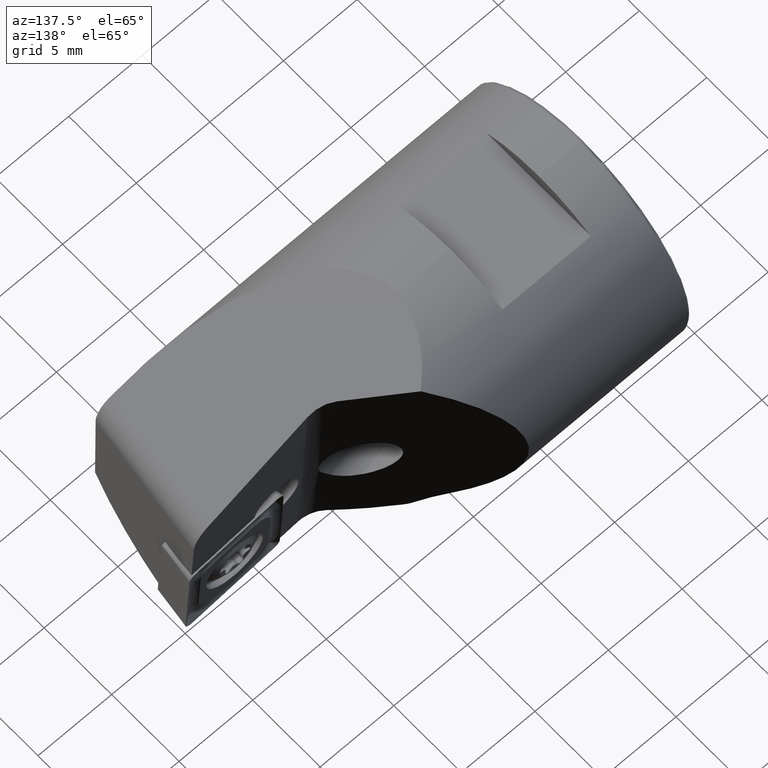
[diagram: clean part render]
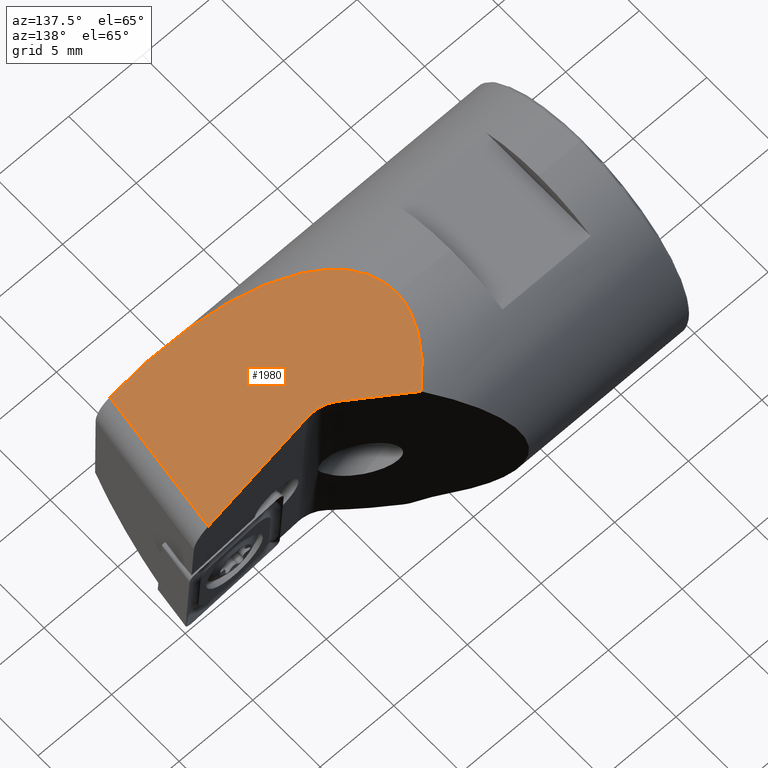
[diagram: same view with one face highlighted and labeled with its STEP entity id]
A machine part, auxiliary view. The second image highlights one B-rep face of the part: STEP entity #1980.
In plain terms, the highlighted planar face has unit normal (0.4963, -0.0155, 0.868).
Its self-contained STEP definition (entity closure, byte-faithful):
#434 = EDGE_CURVE ( 'NONE', #1201, #2522, #3484, .T. ) ;
#653 = VECTOR ( 'NONE', #2007, 1000.000000000000100 ) ;
#692 = DIRECTION ( 'NONE',  ( 0.8681322732934061400, 0.0000000000000000000, -0.4963329085064002700 ) ) ;
#693 = DIRECTION ( 'NONE',  ( 0.4962730758206592200, -0.01552689521502016500, 0.8680276203788011000 ) ) ;
#705 = PLANE ( 'NONE',  #2927 ) ;
#720 = CARTESIAN_POINT ( 'NONE',  ( -0.6563492093354028600, 4.260526196067880600, 11.08757692182506600 ) ) ;
#810 = CARTESIAN_POINT ( 'NONE',  ( -14.41057324405824100, 0.0000000000000000000, 18.87500000000000000 ) ) ;
#849 = EDGE_CURVE ( 'NONE', #2522, #2478, #2099, .T. ) ;
#900 = ORIENTED_EDGE ( 'NONE', *, *, #4530, .T. ) ;
#1004 = VECTOR ( 'NONE', #1341, 1000.000000000000100 ) ;
#1201 = VERTEX_POINT ( 'NONE', #3498 ) ;
#1341 = DIRECTION ( 'NONE',  ( -0.6436261918452250700, 0.6644171922052993800, 0.3798619747656243300 ) ) ;
#1454 = VERTEX_POINT ( 'NONE', #1734 ) ;
#1459 = CARTESIAN_POINT ( 'NONE',  ( -10.73235477607855000, 3.017096448105193800, 16.82603910234428900 ) ) ;
#1463 = EDGE_CURVE ( 'NONE', #4110, #1526, #3055, .T. ) ;
#1493 = CARTESIAN_POINT ( 'NONE',  ( -9.619846067117164200, -7.496217517816189600, 16.00193255735574000 ) ) ;
#1504 = CARTESIAN_POINT ( 'NONE',  ( -7.671572875253806600, 0.6877847938987765600, 15.03444792505222700 ) ) ;
#1526 = VERTEX_POINT ( 'NONE', #1504 ) ;
#1585 = CARTESIAN_POINT ( 'NONE',  ( -14.36192625257542200, 1.554862820819822700, 18.87499999999999600 ) ) ;
#1596 = CARTESIAN_POINT ( 'NONE',  ( -13.54410832939425900, 3.045905834758147800, 18.43410418220003800 ) ) ;
#1612 = ORIENTED_EDGE ( 'NONE', *, *, #849, .T. ) ;
#1686 = CARTESIAN_POINT ( 'NONE',  ( -2.158214616245849100, -7.954422829592213700, 11.72773527431548300 ) ) ;
#1734 = CARTESIAN_POINT ( 'NONE',  ( -9.085786437626906000, 1.317339157197326100, 15.85425033961910700 ) ) ;
#1962 = CARTESIAN_POINT ( 'NONE',  ( -2.158214616245849100, -7.954422829592213700, 11.72773527431548300 ) ) ;
#1970 = CARTESIAN_POINT ( 'NONE',  ( -0.6563492093354028600, 4.260526196067880600, 11.08757692182506600 ) ) ;
#1980 = ADVANCED_FACE ( 'NONE', ( #2485 ), #705, .T. ) ;
#2007 = DIRECTION ( 'NONE',  ( 0.1218693434051425100, 0.9911859016360166100, -0.05194585196140347900 ) ) ;
#2058 = LINE ( 'NONE', #1459, #1004 ) ;
#2099 =( BOUNDED_CURVE ( )  B_SPLINE_CURVE ( 3, ( #2656, #2169, #1493, #1962 ),
 .UNSPECIFIED., .F., .F. ) 
 B_SPLINE_CURVE_WITH_KNOTS ( ( 4, 4 ),
 ( 6.265299655676582100, 7.729301187525055500 ),
 .UNSPECIFIED. ) 
 CURVE ( )  GEOMETRIC_REPRESENTATION_ITEM ( )  RATIONAL_B_SPLINE_CURVE ( ( 1.000000000000000000, 0.8292257744689388600, 0.8292257744689388600, 1.000000000000000000 ) ) 
 REPRESENTATION_ITEM ( '' )  );
#2169 = CARTESIAN_POINT ( 'NONE',  ( -14.54506627655858400, -4.298687534828347100, 18.87499999999999300 ) ) ;
#2263 = CARTESIAN_POINT ( 'NONE',  ( -4.928803231707662200, 0.6055265222330243900, 13.46486659970184100 ) ) ;
#2297 = ORIENTED_EDGE ( 'NONE', *, *, #434, .T. ) ;
#2478 = VERTEX_POINT ( 'NONE', #1686 ) ;
#2485 = FACE_OUTER_BOUND ( 'NONE', #4324, .T. ) ;
#2496 = EDGE_CURVE ( 'NONE', #1454, #1201, #2058, .T. ) ;
#2522 = VERTEX_POINT ( 'NONE', #810 ) ;
#2591 = CARTESIAN_POINT ( 'NONE',  ( -1.119788281549142900, 0.4912905391688565100, 11.28511419219760200 ) ) ;
#2656 = CARTESIAN_POINT ( 'NONE',  ( -14.41057324405824100, 0.0000000000000000000, 18.87500000000000000 ) ) ;
#2927 = AXIS2_PLACEMENT_3D ( 'NONE', #720, #693, #692 ) ;
#2987 = DIRECTION ( 'NONE',  ( -0.8676376859984115100, 0.02602127985856906800, 0.4965155977709500600 ) ) ;
#3055 = LINE ( 'NONE', #2263, #3796 ) ;
#3132 = ORIENTED_EDGE ( 'NONE', *, *, #1463, .T. ) ;
#3133 = CARTESIAN_POINT ( 'NONE',  ( -14.41057324405824100, 0.0000000000000000000, 18.87500000000000000 ) ) ;
#3245 = ORIENTED_EDGE ( 'NONE', *, *, #2496, .T. ) ;
#3343 = EDGE_CURVE ( 'NONE', #2478, #4110, #3692, .T. ) ;
#3389 =( BOUNDED_CURVE ( )  B_SPLINE_CURVE ( 3, ( #3665, #3612, #3535, #3508 ),
 .UNSPECIFIED., .F., .T. ) 
 B_SPLINE_CURVE_WITH_KNOTS ( ( 4, 4 ),
 ( 1.448623279155294200, 2.234021442552744900 ),
 .UNSPECIFIED. ) 
 CURVE ( )  GEOMETRIC_REPRESENTATION_ITEM ( )  RATIONAL_B_SPLINE_CURVE ( ( 1.000000000000000000, 0.9492530216741907900, 0.9492530216741907900, 1.000000000000000000 ) ) 
 REPRESENTATION_ITEM ( '' )  );
#3484 =( BOUNDED_CURVE ( )  B_SPLINE_CURVE ( 3, ( #3817, #1596, #1585, #3133 ),
 .UNSPECIFIED., .F., .F. ) 
 B_SPLINE_CURVE_WITH_KNOTS ( ( 4, 4 ),
 ( 5.690292191861443500, 6.265299655676582100 ),
 .UNSPECIFIED. ) 
 CURVE ( )  GEOMETRIC_REPRESENTATION_ITEM ( )  RATIONAL_B_SPLINE_CURVE ( ( 1.000000000000000000, 0.9726364684065395000, 0.9726364684065395000, 1.000000000000000000 ) ) 
 REPRESENTATION_ITEM ( '' )  );
#3498 = CARTESIAN_POINT ( 'NONE',  ( -12.02425463425073600, 4.350728433957631800, 17.58850594651947200 ) ) ;
#3508 = CARTESIAN_POINT ( 'NONE',  ( -9.085786437626906000, 1.317339157197326100, 15.85425033961910700 ) ) ;
#3535 = CARTESIAN_POINT ( 'NONE',  ( -8.705700842048679900, 0.9249756899994398000, 15.62992748460541400 ) ) ;
#3612 = CARTESIAN_POINT ( 'NONE',  ( -8.209095079383189400, 0.7039055963138417500, 15.34205115944993900 ) ) ;
#3665 = CARTESIAN_POINT ( 'NONE',  ( -7.671572875253806600, 0.6877847938987765600, 15.03444792505222700 ) ) ;
#3692 = LINE ( 'NONE', #1970, #653 ) ;
#3796 = VECTOR ( 'NONE', #2987, 1000.000000000000100 ) ;
#3817 = CARTESIAN_POINT ( 'NONE',  ( -12.02425463425073600, 4.350728433957631800, 17.58850594651947200 ) ) ;
#3821 = ORIENTED_EDGE ( 'NONE', *, *, #3343, .T. ) ;
#4110 = VERTEX_POINT ( 'NONE', #2591 ) ;
#4324 = EDGE_LOOP ( 'NONE', ( #3245, #2297, #1612, #3821, #3132, #900 ) ) ;
#4530 = EDGE_CURVE ( 'NONE', #1526, #1454, #3389, .T. ) ;